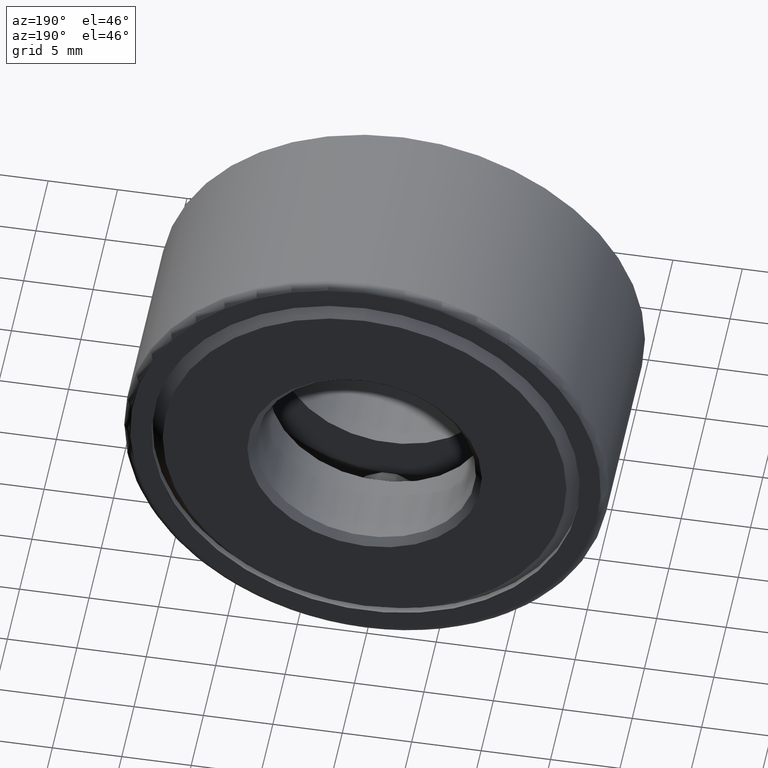
[diagram: clean part render]
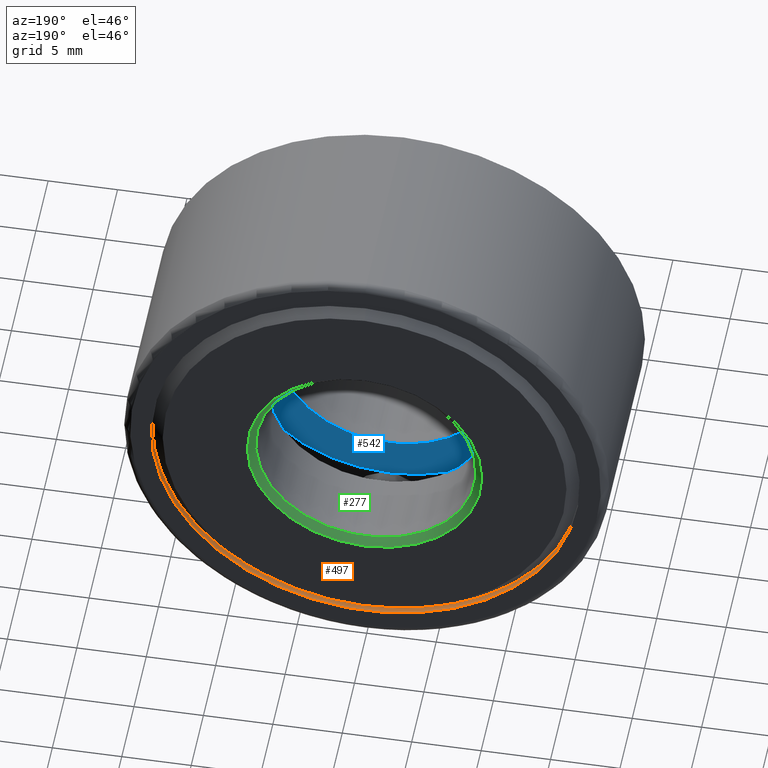
[diagram: same view with three faces highlighted in distinct colors, each labeled with its STEP entity id]
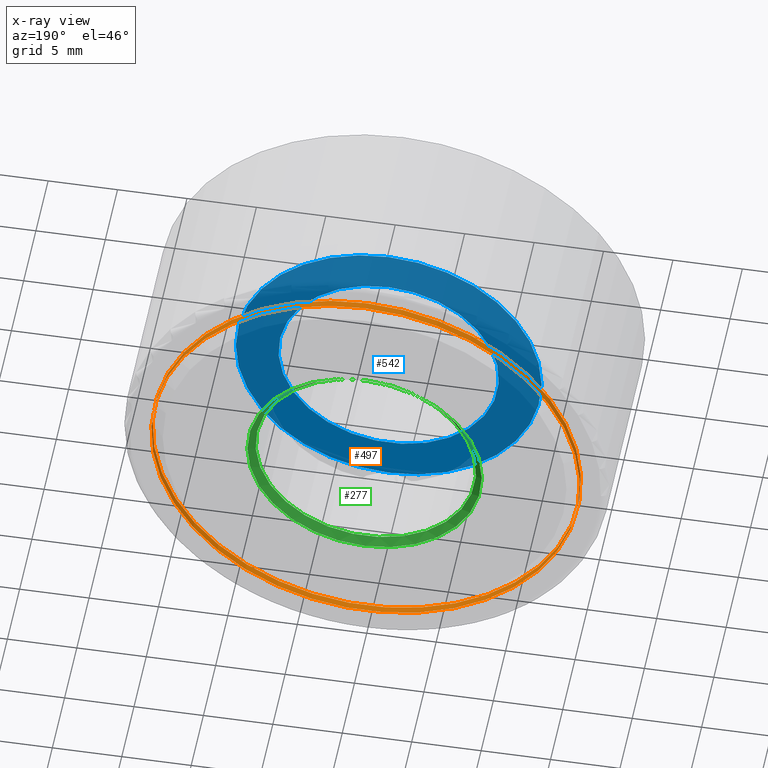
[diagram: x-ray of the same camera — body ghosted, the three highlighted faces saturated]
A machine part, auxiliary view with three faces highlighted in distinct colors.
The next image is the same camera in x-ray (body ghosted, the three faces saturated) — at least one of them is partly hidden behind the body in this view.
Their STEP definitions:

[orange] entity #497 — the highlighted cylindrical surface (bore or boss wall) has radius 15.4305 mm, axis along (-0, 1, -0).
#11 = CARTESIAN_POINT ( 'NONE',  ( 0.0000000000000000000, 0.5900000000000000800, 0.0000000000000000000 ) ) ;
#29 = ORIENTED_EDGE ( 'NONE', *, *, #480, .F. ) ;
#125 = EDGE_LOOP ( 'NONE', ( #594 ) ) ;
#138 = CYLINDRICAL_SURFACE ( 'NONE', #268, 0.6075000000000000400 ) ;
#159 = VERTEX_POINT ( 'NONE', #258 ) ;
#163 = AXIS2_PLACEMENT_3D ( 'NONE', #567, #562, #379 ) ;
#188 = DIRECTION ( 'NONE',  ( 0.0000000000000000000, 0.0000000000000000000, 1.000000000000000000 ) ) ;
#201 = EDGE_LOOP ( 'NONE', ( #29 ) ) ;
#204 = FACE_OUTER_BOUND ( 'NONE', #201, .T. ) ;
#234 = AXIS2_PLACEMENT_3D ( 'NONE', #11, #240, #509 ) ;
#240 = DIRECTION ( 'NONE',  ( -0.0000000000000000000, 1.000000000000000000, -0.0000000000000000000 ) ) ;
#245 = FACE_OUTER_BOUND ( 'NONE', #125, .T. ) ;
#258 = CARTESIAN_POINT ( 'NONE',  ( 0.0000000000000000000, 0.6100000000000001000, 0.6075000000000000400 ) ) ;
#264 = CIRCLE ( 'NONE', #234, 0.6075000000000000400 ) ;
#268 = AXIS2_PLACEMENT_3D ( 'NONE', #431, #338, #188 ) ;
#306 = CARTESIAN_POINT ( 'NONE',  ( 0.0000000000000000000, 0.5900000000000000800, 0.6075000000000000400 ) ) ;
#338 = DIRECTION ( 'NONE',  ( -0.0000000000000000000, 1.000000000000000000, -0.0000000000000000000 ) ) ;
#379 = DIRECTION ( 'NONE',  ( 0.0000000000000000000, 0.0000000000000000000, 1.000000000000000000 ) ) ;
#416 = EDGE_CURVE ( 'NONE', #159, #159, #539, .T. ) ;
#431 = CARTESIAN_POINT ( 'NONE',  ( 0.0000000000000000000, 0.0000000000000000000, 0.0000000000000000000 ) ) ;
#480 = EDGE_CURVE ( 'NONE', #523, #523, #264, .T. ) ;
#497 = ADVANCED_FACE ( 'NONE', ( #204, #245 ), #138, .F. ) ;
#509 = DIRECTION ( 'NONE',  ( 0.0000000000000000000, 0.0000000000000000000, 1.000000000000000000 ) ) ;
#523 = VERTEX_POINT ( 'NONE', #306 ) ;
#539 = CIRCLE ( 'NONE', #163, 0.6075000000000000400 ) ;
#562 = DIRECTION ( 'NONE',  ( -0.0000000000000000000, 1.000000000000000000, -0.0000000000000000000 ) ) ;
#567 = CARTESIAN_POINT ( 'NONE',  ( 0.0000000000000000000, 0.6100000000000001000, 0.0000000000000000000 ) ) ;
#594 = ORIENTED_EDGE ( 'NONE', *, *, #416, .T. ) ;

[blue] entity #542 — the highlighted planar face has unit normal (0, -1, 0).
#1 = VERTEX_POINT ( 'NONE', #308 ) ;
#34 = DIRECTION ( 'NONE',  ( 0.0000000000000000000, 0.0000000000000000000, 1.000000000000000000 ) ) ;
#65 = DIRECTION ( 'NONE',  ( -0.0000000000000000000, 1.000000000000000000, -0.0000000000000000000 ) ) ;
#77 = EDGE_CURVE ( 'NONE', #145, #145, #195, .T. ) ;
#85 = FACE_OUTER_BOUND ( 'NONE', #415, .T. ) ;
#145 = VERTEX_POINT ( 'NONE', #578 ) ;
#150 = ORIENTED_EDGE ( 'NONE', *, *, #77, .T. ) ;
#154 = DIRECTION ( 'NONE',  ( 0.0000000000000000000, 0.0000000000000000000, 1.000000000000000000 ) ) ;
#195 = CIRCLE ( 'NONE', #396, 0.4334999999999998900 ) ;
#198 = DIRECTION ( 'NONE',  ( 0.0000000000000000000, -1.000000000000000000, 0.0000000000000000000 ) ) ;
#242 = CARTESIAN_POINT ( 'NONE',  ( -6.702622918339498200E-017, 0.2374999999999999900, 0.0000000000000000000 ) ) ;
#267 = CARTESIAN_POINT ( 'NONE',  ( 0.0000000000000000000, 0.2374999999999999600, 0.0000000000000000000 ) ) ;
#308 = CARTESIAN_POINT ( 'NONE',  ( 0.0000000000000000000, 0.2374999999999999900, 0.3125000000000000000 ) ) ;
#320 = DIRECTION ( 'NONE',  ( -0.0000000000000000000, 1.000000000000000000, -0.0000000000000000000 ) ) ;
#327 = AXIS2_PLACEMENT_3D ( 'NONE', #242, #198, #519 ) ;
#348 = FACE_BOUND ( 'NONE', #400, .T. ) ;
#381 = ORIENTED_EDGE ( 'NONE', *, *, #600, .F. ) ;
#396 = AXIS2_PLACEMENT_3D ( 'NONE', #267, #320, #34 ) ;
#400 = EDGE_LOOP ( 'NONE', ( #381 ) ) ;
#415 = EDGE_LOOP ( 'NONE', ( #150 ) ) ;
#471 = PLANE ( 'NONE',  #327 ) ;
#519 = DIRECTION ( 'NONE',  ( 0.0000000000000000000, -0.0000000000000000000, -1.000000000000000000 ) ) ;
#542 = ADVANCED_FACE ( 'NONE', ( #348, #85 ), #471, .F. ) ;
#578 = CARTESIAN_POINT ( 'NONE',  ( 0.0000000000000000000, 0.2374999999999999600, 0.4334999999999998900 ) ) ;
#580 = CARTESIAN_POINT ( 'NONE',  ( 0.0000000000000000000, 0.2374999999999999900, 0.0000000000000000000 ) ) ;
#582 = AXIS2_PLACEMENT_3D ( 'NONE', #580, #65, #154 ) ;
#585 = CIRCLE ( 'NONE', #582, 0.3125000000000000000 ) ;
#600 = EDGE_CURVE ( 'NONE', #1, #1, #585, .T. ) ;

[green] entity #277 — the highlighted conical surface has half-angle 45 deg.
#10 = AXIS2_PLACEMENT_3D ( 'NONE', #549, #592, #593 ) ;
#17 = CARTESIAN_POINT ( 'NONE',  ( 0.0000000000000000000, 0.6049999999999999800, 0.3125000000000000000 ) ) ;
#58 = DIRECTION ( 'NONE',  ( 0.0000000000000000000, 0.0000000000000000000, 1.000000000000000000 ) ) ;
#90 = EDGE_CURVE ( 'NONE', #484, #484, #360, .T. ) ;
#127 = VERTEX_POINT ( 'NONE', #314 ) ;
#174 = FACE_BOUND ( 'NONE', #406, .T. ) ;
#189 = FACE_OUTER_BOUND ( 'NONE', #392, .T. ) ;
#277 = ADVANCED_FACE ( 'NONE', ( #189, #174 ), #577, .F. ) ;
#279 = CIRCLE ( 'NONE', #461, 0.3325000000000000700 ) ;
#282 = CARTESIAN_POINT ( 'NONE',  ( 0.0000000000000000000, 0.6249999999999998900, 0.0000000000000000000 ) ) ;
#314 = CARTESIAN_POINT ( 'NONE',  ( 0.0000000000000000000, 0.6249999999999998900, 0.3325000000000000700 ) ) ;
#318 = ORIENTED_EDGE ( 'NONE', *, *, #90, .F. ) ;
#347 = ORIENTED_EDGE ( 'NONE', *, *, #394, .T. ) ;
#360 = CIRCLE ( 'NONE', #10, 0.3125000000000000000 ) ;
#375 = AXIS2_PLACEMENT_3D ( 'NONE', #456, #503, #418 ) ;
#392 = EDGE_LOOP ( 'NONE', ( #347 ) ) ;
#394 = EDGE_CURVE ( 'NONE', #127, #127, #279, .T. ) ;
#406 = EDGE_LOOP ( 'NONE', ( #318 ) ) ;
#418 = DIRECTION ( 'NONE',  ( 0.0000000000000000000, 0.0000000000000000000, 1.000000000000000000 ) ) ;
#456 = CARTESIAN_POINT ( 'NONE',  ( 0.0000000000000000000, 0.6049999999999999800, 0.0000000000000000000 ) ) ;
#461 = AXIS2_PLACEMENT_3D ( 'NONE', #282, #518, #58 ) ;
#484 = VERTEX_POINT ( 'NONE', #17 ) ;
#503 = DIRECTION ( 'NONE',  ( -0.0000000000000000000, 1.000000000000000000, -0.0000000000000000000 ) ) ;
#518 = DIRECTION ( 'NONE',  ( -0.0000000000000000000, 1.000000000000000000, -0.0000000000000000000 ) ) ;
#549 = CARTESIAN_POINT ( 'NONE',  ( 0.0000000000000000000, 0.6049999999999999800, 0.0000000000000000000 ) ) ;
#577 = CONICAL_SURFACE ( 'NONE', #375, 0.3125000000000000000, 0.7853981633974517200 ) ;
#592 = DIRECTION ( 'NONE',  ( -0.0000000000000000000, 1.000000000000000000, -0.0000000000000000000 ) ) ;
#593 = DIRECTION ( 'NONE',  ( 0.0000000000000000000, 0.0000000000000000000, 1.000000000000000000 ) ) ;